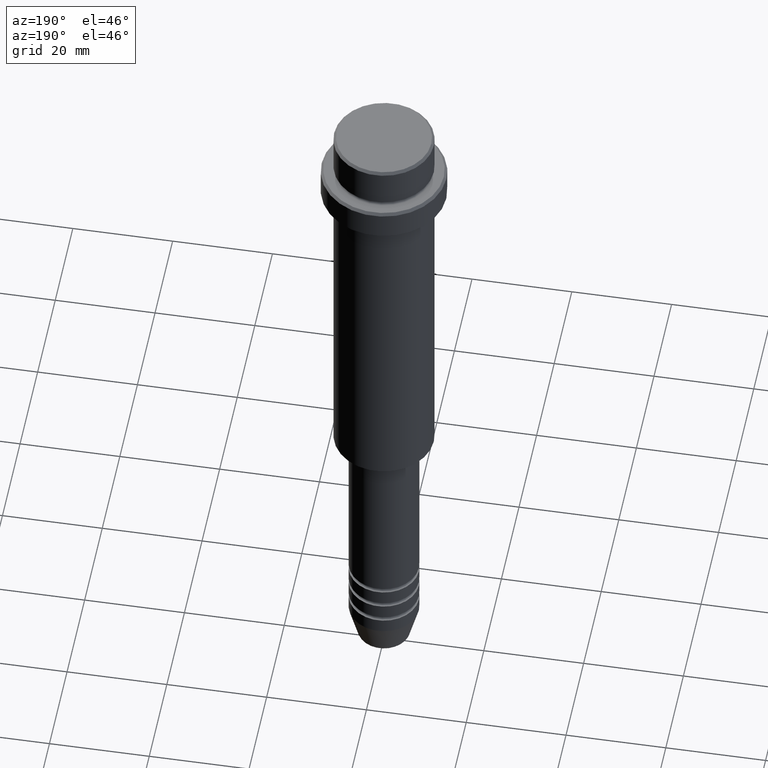
[diagram: clean part render]
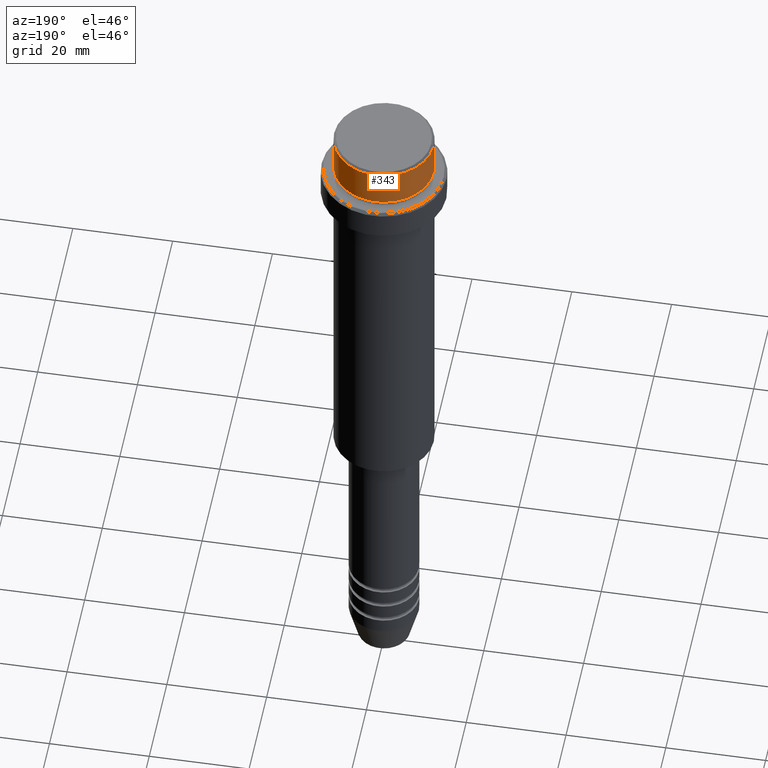
[diagram: same view with one face highlighted and labeled with its STEP entity id]
A machine part, auxiliary view. The second image highlights one B-rep face of the part: STEP entity #343.
In plain terms, the highlighted cylindrical surface (partial cylindrical patch) has radius 10 mm, axis along (-0, -0, 1).
Its self-contained STEP definition (entity closure, byte-faithful):
#147 = CARTESIAN_POINT ( 'NONE',  ( 9.999999999999998224, 0.000000000000000000, 0.000000000000000000 ) ) ;
#154 = EDGE_CURVE ( 'NONE', #196, #305, #475, .T. ) ;
#172 = DIRECTION ( 'NONE',  ( -0.000000000000000000, -0.000000000000000000, 1.000000000000000000 ) ) ;
#196 = VERTEX_POINT ( 'NONE', #800 ) ;
#203 = AXIS2_PLACEMENT_3D ( 'NONE', #760, #231, #656 ) ;
#231 = DIRECTION ( 'NONE',  ( -0.000000000000000000, -0.000000000000000000, 1.000000000000000000 ) ) ;
#269 = AXIS2_PLACEMENT_3D ( 'NONE', #721, #172, #706 ) ;
#296 = FACE_OUTER_BOUND ( 'NONE', #865, .T. ) ;
#305 = VERTEX_POINT ( 'NONE', #813 ) ;
#316 = CIRCLE ( 'NONE', #473, 9.999999999999998224 ) ;
#343 = ADVANCED_FACE ( 'NONE', ( #296 ), #483, .T. ) ;
#442 = CARTESIAN_POINT ( 'NONE',  ( -9.999999999999998224, 1.224646799147353059E-15, 0.000000000000000000 ) ) ;
#473 = AXIS2_PLACEMENT_3D ( 'NONE', #1237, #567, #1108 ) ;
#475 = LINE ( 'NONE', #147, #808 ) ;
#483 = CYLINDRICAL_SURFACE ( 'NONE', #269, 9.999999999999998224 ) ;
#508 = VERTEX_POINT ( 'NONE', #895 ) ;
#528 = LINE ( 'NONE', #442, #758 ) ;
#529 = ORIENTED_EDGE ( 'NONE', *, *, #154, .F. ) ;
#567 = DIRECTION ( 'NONE',  ( 0.000000000000000000, 0.000000000000000000, -1.000000000000000000 ) ) ;
#656 = DIRECTION ( 'NONE',  ( 1.000000000000000000, 0.000000000000000000, 0.000000000000000000 ) ) ;
#695 = EDGE_CURVE ( 'NONE', #508, #902, #528, .T. ) ;
#706 = DIRECTION ( 'NONE',  ( 1.000000000000000000, 0.000000000000000000, 0.000000000000000000 ) ) ;
#721 = CARTESIAN_POINT ( 'NONE',  ( 0.000000000000000000, 0.000000000000000000, 0.000000000000000000 ) ) ;
#758 = VECTOR ( 'NONE', #1305, 1000.000000000000000 ) ;
#760 = CARTESIAN_POINT ( 'NONE',  ( 0.000000000000000000, 0.000000000000000000, -7.999999999999998224 ) ) ;
#799 = EDGE_CURVE ( 'NONE', #196, #508, #1158, .T. ) ;
#800 = CARTESIAN_POINT ( 'NONE',  ( 9.999999999999998224, 0.000000000000000000, -7.999999999999998224 ) ) ;
#808 = VECTOR ( 'NONE', #898, 1000.000000000000000 ) ;
#813 = CARTESIAN_POINT ( 'NONE',  ( 9.999999999999998224, 0.000000000000000000, -0.4999999999999970024 ) ) ;
#865 = EDGE_LOOP ( 'NONE', ( #1100, #1357, #1378, #529 ) ) ;
#895 = CARTESIAN_POINT ( 'NONE',  ( -9.999999999999998224, 1.224646799147353059E-15, -7.999999999999998224 ) ) ;
#898 = DIRECTION ( 'NONE',  ( -0.000000000000000000, -0.000000000000000000, 1.000000000000000000 ) ) ;
#902 = VERTEX_POINT ( 'NONE', #1003 ) ;
#1003 = CARTESIAN_POINT ( 'NONE',  ( -9.999999999999998224, 1.224646799147353059E-15, -0.4999999999999970024 ) ) ;
#1100 = ORIENTED_EDGE ( 'NONE', *, *, #799, .T. ) ;
#1108 = DIRECTION ( 'NONE',  ( 1.000000000000000000, 0.000000000000000000, 0.000000000000000000 ) ) ;
#1158 = CIRCLE ( 'NONE', #203, 9.999999999999998224 ) ;
#1237 = CARTESIAN_POINT ( 'NONE',  ( 0.000000000000000000, 0.000000000000000000, -0.4999999999999970024 ) ) ;
#1305 = DIRECTION ( 'NONE',  ( -0.000000000000000000, -0.000000000000000000, 1.000000000000000000 ) ) ;
#1351 = EDGE_CURVE ( 'NONE', #902, #305, #316, .T. ) ;
#1357 = ORIENTED_EDGE ( 'NONE', *, *, #695, .T. ) ;
#1378 = ORIENTED_EDGE ( 'NONE', *, *, #1351, .T. ) ;